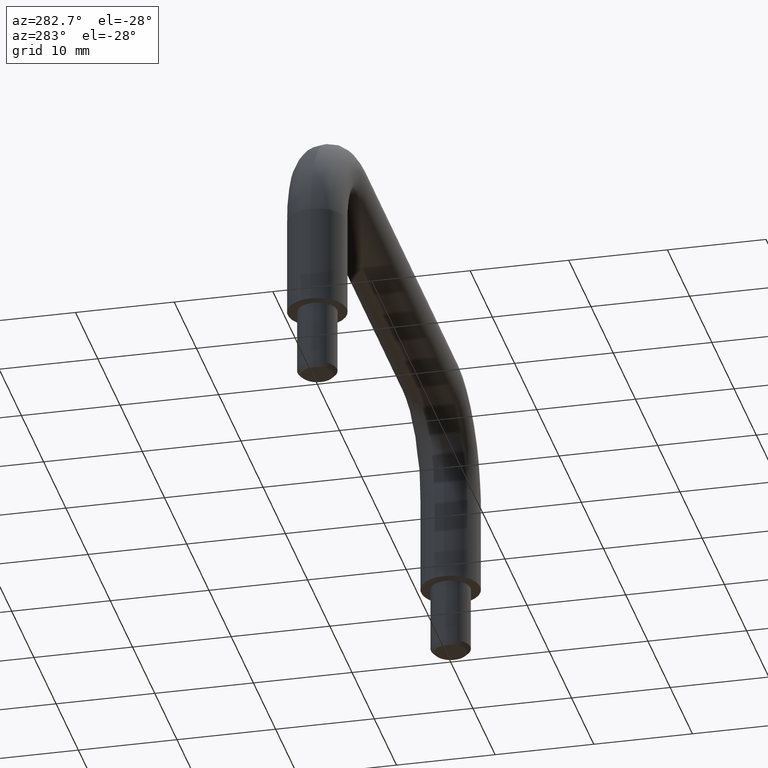
[diagram: clean part render]
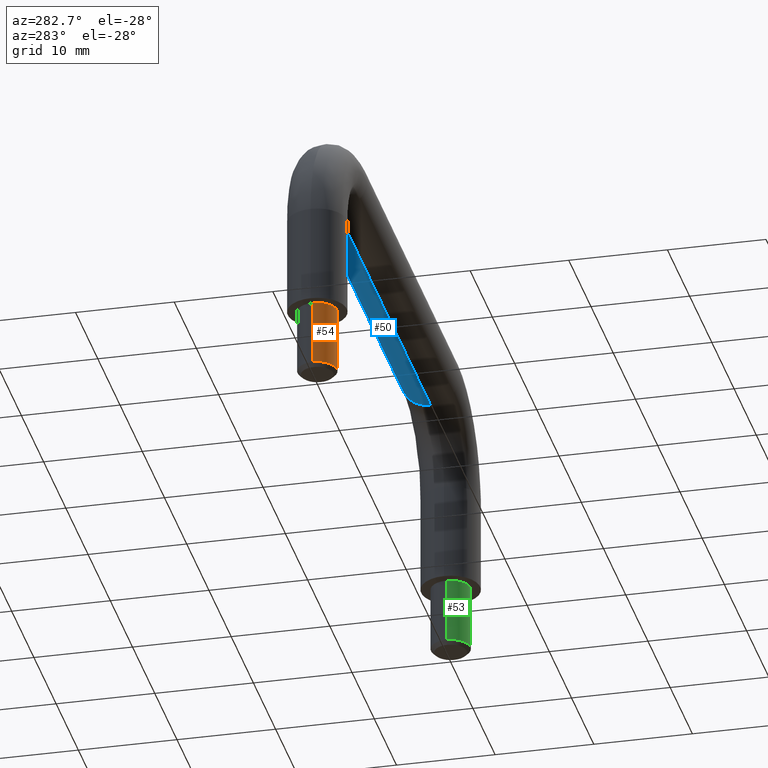
[diagram: same view with three faces highlighted in distinct colors, each labeled with its STEP entity id]
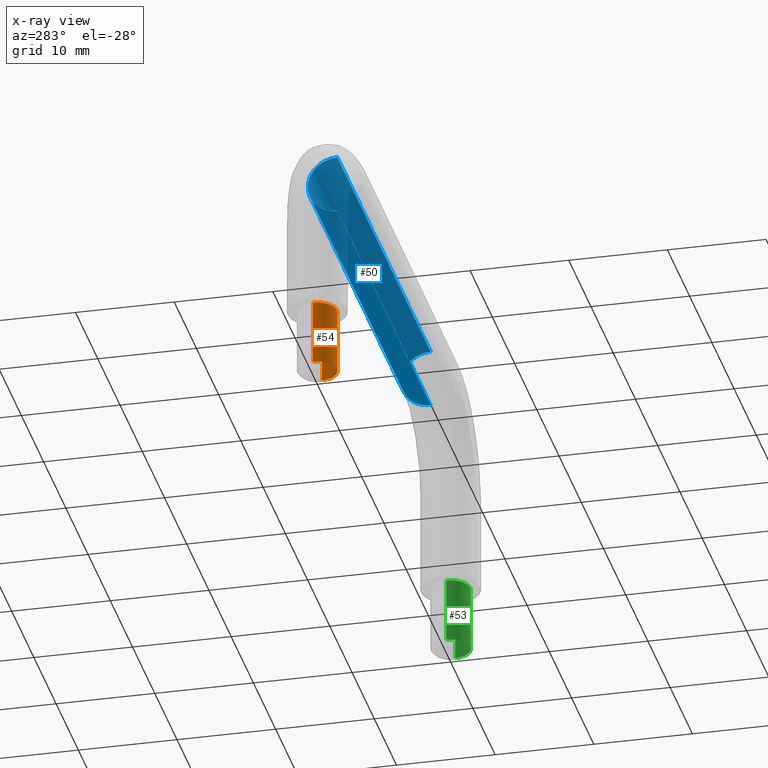
[diagram: x-ray of the same camera — body ghosted, the three highlighted faces saturated]
A machine part, auxiliary view with three faces highlighted in distinct colors.
The next image is the same camera in x-ray (body ghosted, the three faces saturated) — at least one of them is partly hidden behind the body in this view.
Their STEP definitions:

[orange] entity #54 — the highlighted cylindrical surface (edge-blend (fillet) strip) has radius 2.0045 mm, axis along (0, 0, -1).
#54=ADVANCED_FACE('',(#205),#204,.T.);
#204=CYLINDRICAL_SURFACE('',#539,2.00450976625E+00);
#205=FACE_OUTER_BOUND('',#540,.T.);
#536=CARTESIAN_POINT('',(-3.00000000001E+01,0.00000000000E+00,-1.93105001450E+01));
#537=DIRECTION('',(0.00000000000E+00,0.00000000000E+00,-1.00000000000E+00));
#538=DIRECTION('',(1.00000000000E+00,-0.00000000000E+00,0.00000000000E+00));
#539=AXIS2_PLACEMENT_3D('',#536,#537,#538);
#540=EDGE_LOOP('',(#652,#653,#654,#655));
#652=ORIENTED_EDGE('',*,*,#716,.T.);
#653=ORIENTED_EDGE('',*,*,#717,.F.);
#654=ORIENTED_EDGE('',*,*,#706,.F.);
#655=ORIENTED_EDGE('',*,*,#718,.T.);
#706=EDGE_CURVE('',#876,#877,#878,.T.);
#716=EDGE_CURVE('',#940,#941,#942,.T.);
#717=EDGE_CURVE('',#877,#941,#948,.T.);
#718=EDGE_CURVE('',#876,#940,#954,.T.);
#876=VERTEX_POINT('',#1110);
#877=VERTEX_POINT('',#1111);
#878=CIRCLE('',#1115,2.00450976625E+00);
#940=VERTEX_POINT('',#1142);
#941=VERTEX_POINT('',#1143);
#942=CIRCLE('',#1147,2.00450976625E+00);
#948=(BOUNDED_CURVE() B_SPLINE_CURVE(1,(#1148,#1149),.UNSPECIFIED.,.F.,.F.) B_SPLINE_CURVE_WITH_KNOTS((2,2),(8.33333347523E-02,9.16666664312E-01),.UNSPECIFIED.) CURVE() GEOMETRIC_REPRESENTATION_ITEM() RATIONAL_B_SPLINE_CURVE((1.00000000000E+00,1.00000000000E+00)) REPRESENTATION_ITEM('') );
#954=(BOUNDED_CURVE() B_SPLINE_CURVE(1,(#1150,#1151),.UNSPECIFIED.,.F.,.F.) B_SPLINE_CURVE_WITH_KNOTS((2,2),(8.33333333333E-02,9.16666666667E-01),.UNSPECIFIED.) CURVE() GEOMETRIC_REPRESENTATION_ITEM() RATIONAL_B_SPLINE_CURVE((7.50000000000E-01,7.50000000000E-01)) REPRESENTATION_ITEM('') );
#1110=CARTESIAN_POINT('',(-3.20045097663E+01,2.45473539605E-16,-1.60000000000E+01));
#1111=CARTESIAN_POINT('',(-2.79954902338E+01,7.40148683083E-17,-1.60000000000E+01));
#1112=CARTESIAN_POINT('',(-3.00000000001E+01,0.00000000000E+00,-1.60000000000E+01));
#1113=DIRECTION('',(-0.00000000000E+00,0.00000000000E+00,1.00000000000E+00));
#1114=DIRECTION('',(-1.00000000000E+00,-0.00000000000E+00,-0.00000000000E+00));
#1115=AXIS2_PLACEMENT_3D('',#1112,#1113,#1114);
#1142=CARTESIAN_POINT('',(-3.20045097663E+01,2.45473539605E-16,-2.26209999999E+01));
#1143=CARTESIAN_POINT('',(-2.79954902338E+01,7.40148683083E-17,-2.26209999999E+01));
#1144=CARTESIAN_POINT('',(-3.00000000001E+01,0.00000000000E+00,-2.26209999999E+01));
#1145=DIRECTION('',(-0.00000000000E+00,0.00000000000E+00,1.00000000000E+00));
#1146=DIRECTION('',(-1.00000000000E+00,-0.00000000000E+00,-0.00000000000E+00));
#1147=AXIS2_PLACEMENT_3D('',#1144,#1145,#1146);
#1148=CARTESIAN_POINT('',(-2.79954902338E+01,0.00000000000E+00,-1.60000000113E+01));
#1149=CARTESIAN_POINT('',(-2.79954902338E+01,0.00000000000E+00,-2.26209999812E+01));
#1150=CARTESIAN_POINT('',(-3.20045097664E+01,7.40148683083E-17,-1.60000000000E+01));
#1151=CARTESIAN_POINT('',(-3.20045097664E+01,7.40148683083E-17,-2.26209999999E+01));

[blue] entity #50 — the highlighted cylindrical surface (edge-blend (fillet) strip) has radius 3 mm, axis along (-1, -0, 0).
#50=ADVANCED_FACE('',(#165),#164,.T.);
#164=CYLINDRICAL_SURFACE('',#519,3.00000000000E+00);
#165=FACE_OUTER_BOUND('',#520,.T.);
#516=CARTESIAN_POINT('',(0.00000000000E+00,0.00000000000E+00,3.00000000000E+00));
#517=DIRECTION('',(-1.00000000000E+00,-0.00000000000E+00,0.00000000000E+00));
#518=DIRECTION('',(0.00000000000E+00,-0.00000000000E+00,1.00000000000E+00));
#519=AXIS2_PLACEMENT_3D('',#516,#517,#518);
#520=EDGE_LOOP('',(#636,#637,#638,#639));
#636=ORIENTED_EDGE('',*,*,#700,.F.);
#637=ORIENTED_EDGE('',*,*,#710,.F.);
#638=ORIENTED_EDGE('',*,*,#695,.T.);
#639=ORIENTED_EDGE('',*,*,#711,.T.);
#695=EDGE_CURVE('',#727,#726,#802,.T.);
#700=EDGE_CURVE('',#823,#816,#836,.T.);
#710=EDGE_CURVE('',#727,#823,#902,.T.);
#711=EDGE_CURVE('',#726,#816,#908,.T.);
#726=VERTEX_POINT('',#1002);
#727=VERTEX_POINT('',#1003);
#802=CIRCLE('',#1060,3.00000000000E+00);
#816=VERTEX_POINT('',#1067);
#823=VERTEX_POINT('',#1072);
#836=CIRCLE('',#1085,3.00000000000E+00);
#902=(BOUNDED_CURVE() B_SPLINE_CURVE(1,(#1124,#1125),.UNSPECIFIED.,.F.,.F.) B_SPLINE_CURVE_WITH_KNOTS((2,2),(8.33333335810E-02,9.16666666255E-01),.UNSPECIFIED.) CURVE() GEOMETRIC_REPRESENTATION_ITEM() RATIONAL_B_SPLINE_CURVE((1.00000000000E+00,1.00000000000E+00)) REPRESENTATION_ITEM('') );
#908=(BOUNDED_CURVE() B_SPLINE_CURVE(1,(#1126,#1127),.UNSPECIFIED.,.F.,.F.) B_SPLINE_CURVE_WITH_KNOTS((2,2),(8.33333333333E-02,9.16666666667E-01),.UNSPECIFIED.) CURVE() GEOMETRIC_REPRESENTATION_ITEM() RATIONAL_B_SPLINE_CURVE((7.50000000000E-01,7.50000000000E-01)) REPRESENTATION_ITEM('') );
#1002=CARTESIAN_POINT('',(2.10000000001E+01,-1.48029736617E-16,7.40148683083E-17));
#1003=CARTESIAN_POINT('',(2.10000000001E+01,0.00000000000E+00,6.00000000000E+00));
#1057=CARTESIAN_POINT('',(2.10000000001E+01,0.00000000000E+00,3.00000000000E+00));
#1058=DIRECTION('',(-1.00000000000E+00,0.00000000000E+00,0.00000000000E+00));
#1059=DIRECTION('',(-0.00000000000E+00,-0.00000000000E+00,-1.00000000000E+00));
#1060=AXIS2_PLACEMENT_3D('',#1057,#1058,#1059);
#1067=CARTESIAN_POINT('',(-2.10000000001E+01,-1.48029736617E-16,7.40148683083E-17));
#1072=CARTESIAN_POINT('',(-2.10000000001E+01,0.00000000000E+00,6.00000000000E+00));
#1082=CARTESIAN_POINT('',(-2.10000000001E+01,0.00000000000E+00,3.00000000000E+00));
#1083=DIRECTION('',(-1.00000000000E+00,0.00000000000E+00,0.00000000000E+00));
#1084=DIRECTION('',(-0.00000000000E+00,-0.00000000000E+00,-1.00000000000E+00));
#1085=AXIS2_PLACEMENT_3D('',#1082,#1083,#1084);
#1124=CARTESIAN_POINT('',(2.09999999876E+01,0.00000000000E+00,6.00000000000E+00));
#1125=CARTESIAN_POINT('',(-2.09999999794E+01,0.00000000000E+00,6.00000000000E+00));
#1126=CARTESIAN_POINT('',(2.10000000001E+01,-1.48029736617E-16,1.48029736617E-16));
#1127=CARTESIAN_POINT('',(-2.10000000001E+01,-1.48029736617E-16,1.48029736617E-16));

[green] entity #53 — the highlighted cylindrical surface (edge-blend (fillet) strip) has radius 2.0045 mm, axis along (-0, 0, -1).
#53=ADVANCED_FACE('',(#195),#194,.T.);
#194=CYLINDRICAL_SURFACE('',#534,2.00450976625E+00);
#195=FACE_OUTER_BOUND('',#535,.T.);
#531=CARTESIAN_POINT('',(3.00000000001E+01,0.00000000000E+00,-1.93105001450E+01));
#532=DIRECTION('',(-0.00000000000E+00,0.00000000000E+00,-1.00000000000E+00));
#533=DIRECTION('',(-1.00000000000E+00,-0.00000000000E+00,0.00000000000E+00));
#534=AXIS2_PLACEMENT_3D('',#531,#532,#533);
#535=EDGE_LOOP('',(#648,#649,#650,#651));
#648=ORIENTED_EDGE('',*,*,#692,.T.);
#649=ORIENTED_EDGE('',*,*,#713,.T.);
#650=ORIENTED_EDGE('',*,*,#715,.F.);
#651=ORIENTED_EDGE('',*,*,#714,.F.);
#692=EDGE_CURVE('',#782,#783,#784,.T.);
#713=EDGE_CURVE('',#783,#914,#922,.T.);
#714=EDGE_CURVE('',#782,#915,#928,.T.);
#715=EDGE_CURVE('',#915,#914,#934,.T.);
#782=VERTEX_POINT('',#1043);
#783=VERTEX_POINT('',#1044);
#784=CIRCLE('',#1048,2.00450976625E+00);
#914=VERTEX_POINT('',#1128);
#915=VERTEX_POINT('',#1129);
#922=(BOUNDED_CURVE() B_SPLINE_CURVE(1,(#1134,#1135),.UNSPECIFIED.,.F.,.F.) B_SPLINE_CURVE_WITH_KNOTS((2,2),(8.33333347523E-02,9.16666664312E-01),.UNSPECIFIED.) CURVE() GEOMETRIC_REPRESENTATION_ITEM() RATIONAL_B_SPLINE_CURVE((1.00000000000E+00,1.00000000000E+00)) REPRESENTATION_ITEM('') );
#928=(BOUNDED_CURVE() B_SPLINE_CURVE(1,(#1136,#1137),.UNSPECIFIED.,.F.,.F.) B_SPLINE_CURVE_WITH_KNOTS((2,2),(8.33333333333E-02,9.16666666667E-01),.UNSPECIFIED.) CURVE() GEOMETRIC_REPRESENTATION_ITEM() RATIONAL_B_SPLINE_CURVE((7.50000000000E-01,7.50000000000E-01)) REPRESENTATION_ITEM('') );
#934=CIRCLE('',#1141,2.00450976625E+00);
#1043=CARTESIAN_POINT('',(3.20045097663E+01,7.40148683083E-17,-1.60000000000E+01));
#1044=CARTESIAN_POINT('',(2.79954902338E+01,-4.67518144524E-16,-1.60000000000E+01));
#1045=CARTESIAN_POINT('',(3.00000000001E+01,0.00000000000E+00,-1.60000000000E+01));
#1046=DIRECTION('',(0.00000000000E+00,0.00000000000E+00,-1.00000000000E+00));
#1047=DIRECTION('',(-1.00000000000E+00,-1.10772523366E-16,-0.00000000000E+00));
#1048=AXIS2_PLACEMENT_3D('',#1045,#1046,#1047);
#1128=CARTESIAN_POINT('',(2.79954902338E+01,0.00000000000E+00,-2.26209999999E+01));
#1129=CARTESIAN_POINT('',(3.20045097663E+01,8.53532059845E-12,-2.26209999999E+01));
#1134=CARTESIAN_POINT('',(2.79954902338E+01,0.00000000000E+00,-1.60000000113E+01));
#1135=CARTESIAN_POINT('',(2.79954902338E+01,0.00000000000E+00,-2.26209999812E+01));
#1136=CARTESIAN_POINT('',(3.20045097664E+01,-7.40148683083E-17,-1.60000000000E+01));
#1137=CARTESIAN_POINT('',(3.20045097664E+01,-7.40148683083E-17,-2.26209999999E+01));
#1138=CARTESIAN_POINT('',(3.00000000001E+01,0.00000000000E+00,-2.26209999999E+01));
#1139=DIRECTION('',(-0.00000000000E+00,0.00000000000E+00,-1.00000000000E+00));
#1140=DIRECTION('',(-1.00000000000E+00,-1.22460635382E-16,0.00000000000E+00));
#1141=AXIS2_PLACEMENT_3D('',#1138,#1139,#1140);